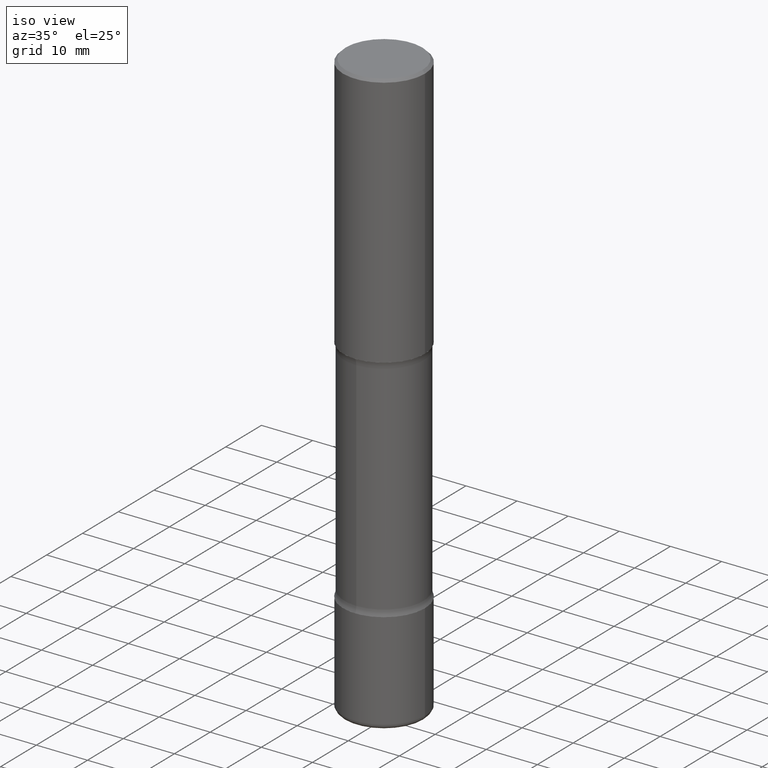
[diagram: clean part render]
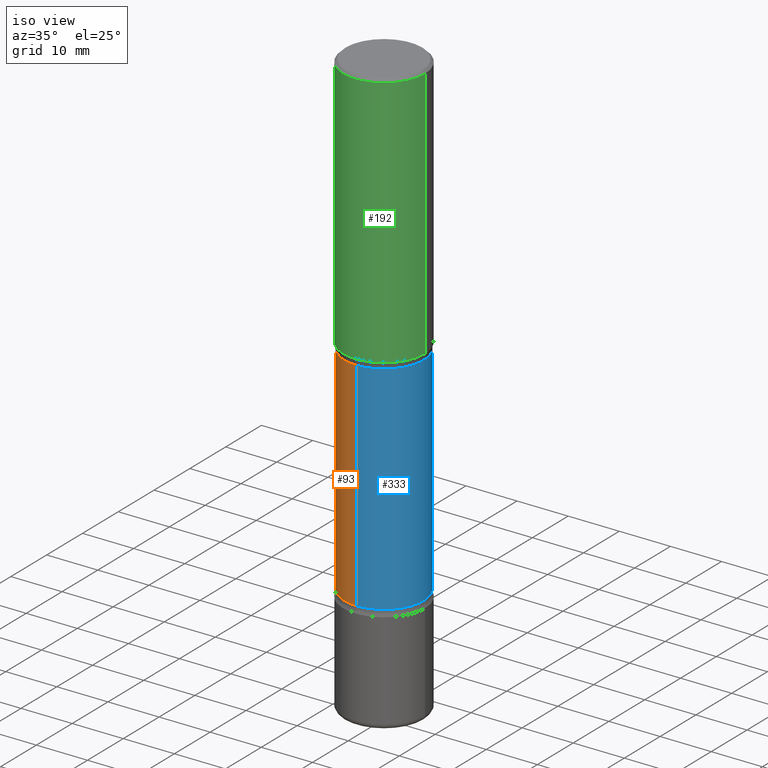
[diagram: same view with three faces highlighted in distinct colors, each labeled with its STEP entity id]
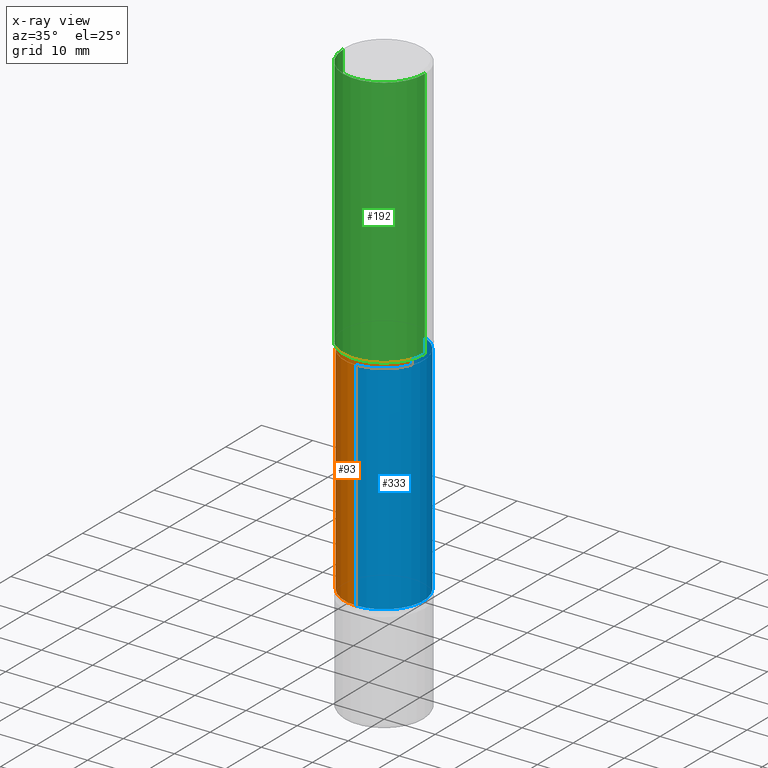
[diagram: x-ray of the same camera — body ghosted, the three highlighted faces saturated]
A machine part, iso view with three faces highlighted in distinct colors.
The next image is the same camera in x-ray (body ghosted, the three faces saturated) — at least one of them is partly hidden behind the body in this view.
Their STEP definitions:

[orange] entity #93 — the highlighted cylindrical surface (partial cylindrical patch) has radius 7.747 mm, axis along (0, -0, -1).
#6 = EDGE_CURVE ( 'NONE', #537, #237, #458, .T. ) ;
#29 = FACE_OUTER_BOUND ( 'NONE', #459, .T. ) ;
#56 = DIRECTION ( 'NONE',  ( 2.508997697352003204E-29, -3.400504350852260021E-15, -1.000000000000000000 ) ) ;
#93 = ADVANCED_FACE ( 'NONE', ( #29 ), #204, .T. ) ;
#117 = DIRECTION ( 'NONE',  ( 2.508997697352003204E-29, -3.400504350852260021E-15, -1.000000000000000000 ) ) ;
#121 = AXIS2_PLACEMENT_3D ( 'NONE', #433, #507, #559 ) ;
#131 = VECTOR ( 'NONE', #56, 39.37007874015748143 ) ;
#134 = ORIENTED_EDGE ( 'NONE', *, *, #182, .T. ) ;
#147 = CARTESIAN_POINT ( 'NONE',  ( -2.092451889320205392E-15, -0.3050000000000157030, -4.527599999999998737 ) ) ;
#149 = ORIENTED_EDGE ( 'NONE', *, *, #6, .F. ) ;
#164 = CARTESIAN_POINT ( 'NONE',  ( -2.126582866859184041E-15, -0.3050000000000072098, -2.017372256956273535 ) ) ;
#172 = CARTESIAN_POINT ( 'NONE',  ( 4.823971588662791399E-29, -7.200355267551965208E-15, -2.017372256956274423 ) ) ;
#182 = EDGE_CURVE ( 'NONE', #468, #275, #242, .T. ) ;
#197 = DIRECTION ( 'NONE',  ( 2.508997697352003204E-29, -3.400504350852260021E-15, -1.000000000000000000 ) ) ;
#204 = CYLINDRICAL_SURFACE ( 'NONE', #121, 0.3049999999999999378 ) ;
#208 = CIRCLE ( 'NONE', #539, 0.3049999999999998823 ) ;
#237 = VERTEX_POINT ( 'NONE', #296 ) ;
#242 = LINE ( 'NONE', #279, #131 ) ;
#257 = DIRECTION ( 'NONE',  ( 2.508997697352003204E-29, -3.400504350852260021E-15, -1.000000000000000000 ) ) ;
#265 = AXIS2_PLACEMENT_3D ( 'NONE', #172, #257, #354 ) ;
#275 = VERTEX_POINT ( 'NONE', #426 ) ;
#279 = CARTESIAN_POINT ( 'NONE',  ( 2.129803616694422103E-15, 0.3049999999999842282, -4.527600000000001401 ) ) ;
#296 = CARTESIAN_POINT ( 'NONE',  ( -2.126582866859139076E-15, -0.3050000000000128164, -3.691327743043726350 ) ) ;
#319 = CARTESIAN_POINT ( 'NONE',  ( 2.129803616694359388E-15, 0.3049999999999927769, -2.017372256956275756 ) ) ;
#320 = EDGE_CURVE ( 'NONE', #237, #275, #208, .T. ) ;
#337 = CARTESIAN_POINT ( 'NONE',  ( 9.023922048725964423E-29, -1.289264818112535948E-14, -3.691327743043727239 ) ) ;
#354 = DIRECTION ( 'NONE',  ( 6.982962677686266711E-15, 1.000000000000000000, -3.582751467100673306E-15 ) ) ;
#379 = DIRECTION ( 'NONE',  ( 6.982962677686266711E-15, 1.000000000000000000, -3.582751467100674095E-15 ) ) ;
#386 = CIRCLE ( 'NONE', #265, 0.3049999999999999933 ) ;
#423 = ORIENTED_EDGE ( 'NONE', *, *, #522, .T. ) ;
#426 = CARTESIAN_POINT ( 'NONE',  ( 2.129803616694400804E-15, 0.3049999999999870037, -3.691327743043728571 ) ) ;
#433 = CARTESIAN_POINT ( 'NONE',  ( 1.112212721578861617E-28, -1.573639562940220266E-14, -4.527600000000000513 ) ) ;
#458 = LINE ( 'NONE', #147, #481 ) ;
#459 = EDGE_LOOP ( 'NONE', ( #149, #423, #134, #546 ) ) ;
#468 = VERTEX_POINT ( 'NONE', #319 ) ;
#481 = VECTOR ( 'NONE', #197, 39.37007874015748143 ) ;
#507 = DIRECTION ( 'NONE',  ( 2.508997697352003204E-29, -3.400504350852260021E-15, -1.000000000000000000 ) ) ;
#522 = EDGE_CURVE ( 'NONE', #537, #468, #386, .T. ) ;
#537 = VERTEX_POINT ( 'NONE', #164 ) ;
#539 = AXIS2_PLACEMENT_3D ( 'NONE', #337, #117, #379 ) ;
#546 = ORIENTED_EDGE ( 'NONE', *, *, #320, .F. ) ;
#559 = DIRECTION ( 'NONE',  ( 6.982962677686266711E-15, 1.000000000000000000, -3.582751467100674095E-15 ) ) ;

[blue] entity #333 — the highlighted cylindrical surface (partial cylindrical patch) has radius 7.747 mm, axis along (0, -0, -1).
#6 = EDGE_CURVE ( 'NONE', #537, #237, #458, .T. ) ;
#13 = ORIENTED_EDGE ( 'NONE', *, *, #6, .T. ) ;
#22 = ORIENTED_EDGE ( 'NONE', *, *, #305, .F. ) ;
#52 = DIRECTION ( 'NONE',  ( 2.508997697352003204E-29, -3.400504350852260021E-15, -1.000000000000000000 ) ) ;
#56 = DIRECTION ( 'NONE',  ( 2.508997697352003204E-29, -3.400504350852260021E-15, -1.000000000000000000 ) ) ;
#57 = ORIENTED_EDGE ( 'NONE', *, *, #368, .T. ) ;
#69 = CARTESIAN_POINT ( 'NONE',  ( 9.023922048725964423E-29, -1.289264818112535948E-14, -3.691327743043727239 ) ) ;
#120 = ORIENTED_EDGE ( 'NONE', *, *, #182, .F. ) ;
#129 = DIRECTION ( 'NONE',  ( 6.982962677686266711E-15, 1.000000000000000000, -3.582751467100674095E-15 ) ) ;
#131 = VECTOR ( 'NONE', #56, 39.37007874015748143 ) ;
#147 = CARTESIAN_POINT ( 'NONE',  ( -2.092451889320205392E-15, -0.3050000000000157030, -4.527599999999998737 ) ) ;
#154 = DIRECTION ( 'NONE',  ( 6.982962677686266711E-15, 1.000000000000000000, -3.582751467100674095E-15 ) ) ;
#164 = CARTESIAN_POINT ( 'NONE',  ( -2.126582866859184041E-15, -0.3050000000000072098, -2.017372256956273535 ) ) ;
#177 = CARTESIAN_POINT ( 'NONE',  ( 4.823971588662791399E-29, -7.200355267551965208E-15, -2.017372256956274423 ) ) ;
#182 = EDGE_CURVE ( 'NONE', #468, #275, #242, .T. ) ;
#197 = DIRECTION ( 'NONE',  ( 2.508997697352003204E-29, -3.400504350852260021E-15, -1.000000000000000000 ) ) ;
#226 = CIRCLE ( 'NONE', #304, 0.3049999999999998823 ) ;
#237 = VERTEX_POINT ( 'NONE', #296 ) ;
#242 = LINE ( 'NONE', #279, #131 ) ;
#275 = VERTEX_POINT ( 'NONE', #426 ) ;
#279 = CARTESIAN_POINT ( 'NONE',  ( 2.129803616694422103E-15, 0.3049999999999842282, -4.527600000000001401 ) ) ;
#288 = FACE_OUTER_BOUND ( 'NONE', #494, .T. ) ;
#296 = CARTESIAN_POINT ( 'NONE',  ( -2.126582866859139076E-15, -0.3050000000000128164, -3.691327743043726350 ) ) ;
#300 = DIRECTION ( 'NONE',  ( 2.508997697352003204E-29, -3.400504350852260021E-15, -1.000000000000000000 ) ) ;
#304 = AXIS2_PLACEMENT_3D ( 'NONE', #69, #540, #154 ) ;
#305 = EDGE_CURVE ( 'NONE', #275, #237, #226, .T. ) ;
#319 = CARTESIAN_POINT ( 'NONE',  ( 2.129803616694359388E-15, 0.3049999999999927769, -2.017372256956275756 ) ) ;
#333 = ADVANCED_FACE ( 'NONE', ( #288 ), #385, .T. ) ;
#347 = CARTESIAN_POINT ( 'NONE',  ( 1.112212721578861617E-28, -1.573639562940220266E-14, -4.527600000000000513 ) ) ;
#353 = CIRCLE ( 'NONE', #355, 0.3049999999999999933 ) ;
#355 = AXIS2_PLACEMENT_3D ( 'NONE', #177, #52, #405 ) ;
#368 = EDGE_CURVE ( 'NONE', #468, #537, #353, .T. ) ;
#385 = CYLINDRICAL_SURFACE ( 'NONE', #514, 0.3049999999999999378 ) ;
#405 = DIRECTION ( 'NONE',  ( 6.982962677686266711E-15, 1.000000000000000000, -3.582751467100673306E-15 ) ) ;
#426 = CARTESIAN_POINT ( 'NONE',  ( 2.129803616694400804E-15, 0.3049999999999870037, -3.691327743043728571 ) ) ;
#458 = LINE ( 'NONE', #147, #481 ) ;
#468 = VERTEX_POINT ( 'NONE', #319 ) ;
#481 = VECTOR ( 'NONE', #197, 39.37007874015748143 ) ;
#494 = EDGE_LOOP ( 'NONE', ( #57, #13, #22, #120 ) ) ;
#514 = AXIS2_PLACEMENT_3D ( 'NONE', #347, #300, #129 ) ;
#537 = VERTEX_POINT ( 'NONE', #164 ) ;
#540 = DIRECTION ( 'NONE',  ( 2.508997697352003204E-29, -3.400504350852260021E-15, -1.000000000000000000 ) ) ;

[green] entity #192 — the highlighted cylindrical surface (partial cylindrical patch) has radius 7.9997 mm, axis along (-0, 0, 1).
#10 = EDGE_LOOP ( 'NONE', ( #78, #230, #474, #191 ) ) ;
#15 = CARTESIAN_POINT ( 'NONE',  ( 0.3149499999999998967, -2.230543471175006266E-15, -0.02000000000000006981 ) ) ;
#30 = VERTEX_POINT ( 'NONE', #450 ) ;
#37 = CIRCLE ( 'NONE', #504, 0.3149499999999998967 ) ;
#46 = DIRECTION ( 'NONE',  ( 1.000000000000000000, -6.982962677686269866E-15, 0.000000000000000000 ) ) ;
#72 = VERTEX_POINT ( 'NONE', #15 ) ;
#78 = ORIENTED_EDGE ( 'NONE', *, *, #247, .F. ) ;
#88 = LINE ( 'NONE', #266, #448 ) ;
#111 = VERTEX_POINT ( 'NONE', #292 ) ;
#115 = CARTESIAN_POINT ( 'NONE',  ( 0.000000000000000000, 0.000000000000000000, 0.000000000000000000 ) ) ;
#190 = AXIS2_PLACEMENT_3D ( 'NONE', #397, #261, #46 ) ;
#191 = ORIENTED_EDGE ( 'NONE', *, *, #492, .F. ) ;
#192 = ADVANCED_FACE ( 'NONE', ( #202 ), #380, .T. ) ;
#202 = FACE_OUTER_BOUND ( 'NONE', #10, .T. ) ;
#203 = LINE ( 'NONE', #455, #217 ) ;
#217 = VECTOR ( 'NONE', #345, 39.37007874015748143 ) ;
#218 = CIRCLE ( 'NONE', #190, 0.3149500000000001743 ) ;
#230 = ORIENTED_EDGE ( 'NONE', *, *, #473, .T. ) ;
#247 = EDGE_CURVE ( 'NONE', #111, #451, #203, .T. ) ;
#261 = DIRECTION ( 'NONE',  ( -2.445468806185136597E-29, 3.491481338843145583E-15, 1.000000000000000000 ) ) ;
#266 = CARTESIAN_POINT ( 'NONE',  ( 0.3149500000000000077, -2.199284095337289871E-15, 1.535751875536930130E-29 ) ) ;
#292 = CARTESIAN_POINT ( 'NONE',  ( -0.3149500000000001743, -1.233550974868359743E-15, -1.968500000000000139 ) ) ;
#294 = DIRECTION ( 'NONE',  ( -2.445468806185136597E-29, 3.491481338843145583E-15, 1.000000000000000000 ) ) ;
#345 = DIRECTION ( 'NONE',  ( -2.445468806185136877E-29, 3.491481338843145188E-15, 1.000000000000000000 ) ) ;
#358 = DIRECTION ( 'NONE',  ( -2.445468806185136597E-29, 3.491481338843145583E-15, 1.000000000000000000 ) ) ;
#380 = CYLINDRICAL_SURFACE ( 'NONE', #490, 0.3149500000000000077 ) ;
#397 = CARTESIAN_POINT ( 'NONE',  ( 4.813905344975441835E-29, -6.872981015512731707E-15, -1.968500000000000139 ) ) ;
#437 = CARTESIAN_POINT ( 'NONE',  ( -0.3149499999999998967, 2.129454468560425784E-15, -0.02000000000000006981 ) ) ;
#448 = VECTOR ( 'NONE', #509, 39.37007874015748143 ) ;
#450 = CARTESIAN_POINT ( 'NONE',  ( 0.3149500000000001743, -9.072265110850023156E-15, -1.968500000000000139 ) ) ;
#451 = VERTEX_POINT ( 'NONE', #437 ) ;
#455 = CARTESIAN_POINT ( 'NONE',  ( -0.3149500000000000077, 2.237854346276435590E-15, -1.549218606675782676E-29 ) ) ;
#464 = DIRECTION ( 'NONE',  ( 1.000000000000000000, -6.982962677686266711E-15, 4.876176775795936353E-29 ) ) ;
#473 = EDGE_CURVE ( 'NONE', #111, #30, #218, .T. ) ;
#474 = ORIENTED_EDGE ( 'NONE', *, *, #500, .T. ) ;
#478 = CARTESIAN_POINT ( 'NONE',  ( 4.890937612370289799E-31, -6.982962677686315028E-17, -0.02000000000000006981 ) ) ;
#490 = AXIS2_PLACEMENT_3D ( 'NONE', #115, #294, #464 ) ;
#492 = EDGE_CURVE ( 'NONE', #451, #72, #37, .T. ) ;
#500 = EDGE_CURVE ( 'NONE', #30, #72, #88, .T. ) ;
#504 = AXIS2_PLACEMENT_3D ( 'NONE', #478, #358, #520 ) ;
#509 = DIRECTION ( 'NONE',  ( -2.445468806185136877E-29, 3.491481338843145188E-15, 1.000000000000000000 ) ) ;
#520 = DIRECTION ( 'NONE',  ( 1.000000000000000000, -6.982962677686265922E-15, 0.000000000000000000 ) ) ;